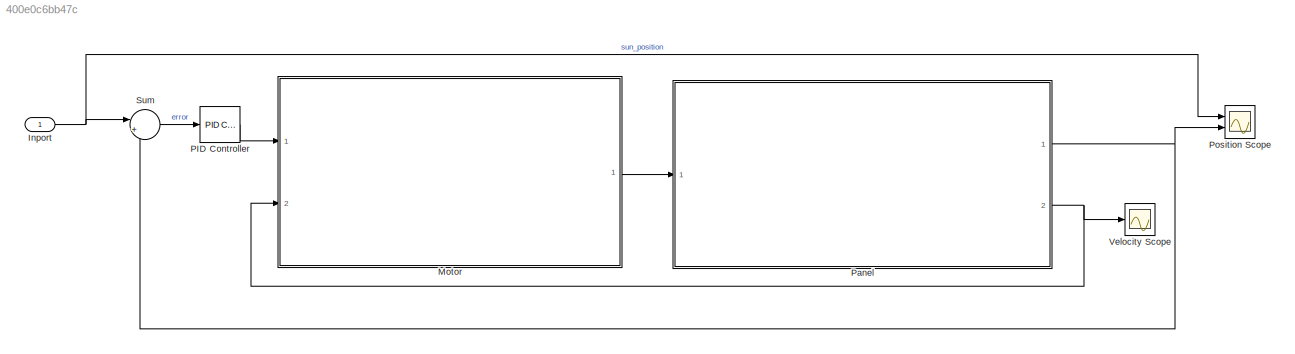
MODEL slx_400e0c6bb47c
KIND model
CONFIG AbsTol = auto
CONFIG EnableMultiTasking = off
CONFIG FixedStep = auto
CONFIG MaxStep = auto
CONFIG MinStep = auto
CONFIG RelTol = 1e-3
CONFIG SampleTimeConstraint = Unconstrained
CONFIG SolverName = VariableStepAuto
CONFIG StartTime = 0.0
CONFIG StopTime = 15*3600
BLOCK [Inport] Inport
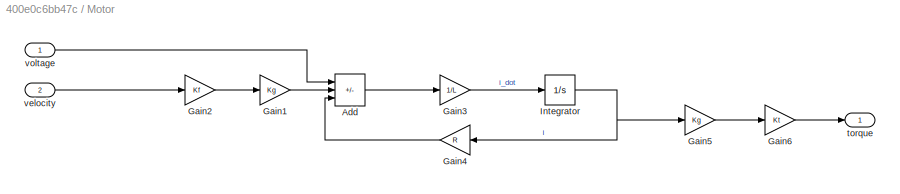
BLOCK [SubSystem] Motor
  Ports = [2, 1]
  RequestExecContextInheritance = off
BLOCK [Sum] Motor/Add
  IconShape = rectangular
  Inputs = +--
  Ports = [3, 1]
BLOCK [Gain] Motor/Gain1
  Gain = Kg
BLOCK [Gain] Motor/Gain2
  Gain = Kf
BLOCK [Gain] Motor/Gain3
  Gain = 1/L
BLOCK [Gain] Motor/Gain4
  Gain = R
BLOCK [Gain] Motor/Gain5
  Gain = Kg
BLOCK [Gain] Motor/Gain6
  Gain = Kt
BLOCK [Integrator] Motor/Integrator
  Ports = [1, 1]
BLOCK [Outport] Motor/torque
BLOCK [Inport] Motor/velocity
  Port = 2
BLOCK [Inport] Motor/voltage
BLOCK [Reference] PID Controller  REF=pid_lib/PID Controller
  Ports = [1, 1]
  SourceBlock = pid_lib/PID Controller
  SourceProductBaseCode = SL
  SourceType = PID 1dof
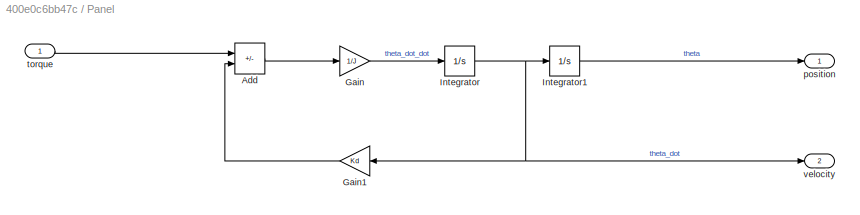
BLOCK [SubSystem] Panel
  Ports = [1, 2]
  RequestExecContextInheritance = off
BLOCK [Sum] Panel/Add
  IconShape = rectangular
  Inputs = +-
  Ports = [2, 1]
BLOCK [Gain] Panel/Gain
  Gain = 1/J
BLOCK [Gain] Panel/Gain1
  Gain = Kd
BLOCK [Integrator] Panel/Integrator
  Ports = [1, 1]
BLOCK [Integrator] Panel/Integrator1
  Ports = [1, 1]
BLOCK [Outport] Panel/position
BLOCK [Inport] Panel/torque
BLOCK [Outport] Panel/velocity
  Port = 2
BLOCK [Scope] Position Scope
  Floating = off
  NumInputPorts = 2
  Ports = [2]
  ScopeSpecificationString = Simulink.scopes.TimeScopeBlockCfg('CurrentConfiguration', extmgr.ConfigurationSet(extmgr.Configuration('Core','General UI',true),extmgr.Configuration('Core','Source UI',true),extmgr.Configuration('Sources','WiredSimulink',true,'DataLoggingVariableName','ScopeData1'),extmgr.Configuration('Visuals','Time Domain',true,'SerializedDisplays',{struct('MinYLimReal','-0.65991','MaxYLimReal','5.93922','YLab...<+1539ch>
BLOCK [Sum] Sum
  Inputs = |+-
  Ports = [2, 1]
BLOCK [Scope] Velocity Scope
  Floating = off
  NumInputPorts = 1
  Ports = [1]
  ScopeSpecificationString = Simulink.scopes.TimeScopeBlockCfg('CurrentConfiguration', extmgr.ConfigurationSet(extmgr.Configuration('Core','General UI',true),extmgr.Configuration('Core','Source UI',true),extmgr.Configuration('Sources','WiredSimulink',true,'DataLoggingVariableName','ScopeData1'),extmgr.Configuration('Visuals','Time Domain',true,'SerializedDisplays',{struct('MinYLimReal','-0.31999','MaxYLimReal','1.91184','YLab...<+1403ch>
NET Inport:1 -> Position Scope:1, Sum:1
LINE Motor/Add:1 -> Motor/Gain3:1
LINE Motor/Gain1:1 -> Motor/Add:2
LINE Motor/Gain2:1 -> Motor/Gain1:1
LINE Motor/Gain3:1 -> Motor/Integrator:1
LINE Motor/Gain4:1 -> Motor/Add:3
LINE Motor/Gain5:1 -> Motor/Gain6:1
LINE Motor/Gain6:1 -> Motor/torque:1
NET Motor/Integrator:1 -> Motor/Gain4:1, Motor/Gain5:1
LINE Motor/velocity:1 -> Motor/Gain2:1
LINE Motor/voltage:1 -> Motor/Add:1
LINE Motor:1 -> Panel:1
LINE PID Controller:1 -> Motor:1
LINE Panel/Add:1 -> Panel/Gain:1
LINE Panel/Gain1:1 -> Panel/Add:2
LINE Panel/Gain:1 -> Panel/Integrator:1
LINE Panel/Integrator1:1 -> Panel/position:1
NET Panel/Integrator:1 -> Panel/Gain1:1, Panel/Integrator1:1, Panel/velocity:1
LINE Panel/torque:1 -> Panel/Add:1
NET Panel:1 -> Position Scope:2, Sum:2
NET Panel:2 -> Motor:2, Velocity Scope:1
LINE Sum:1 -> PID Controller:1
note: NET lines group one-source signal fan-out (src -> all destinations, sorted); 1:1 wires keep LINE
